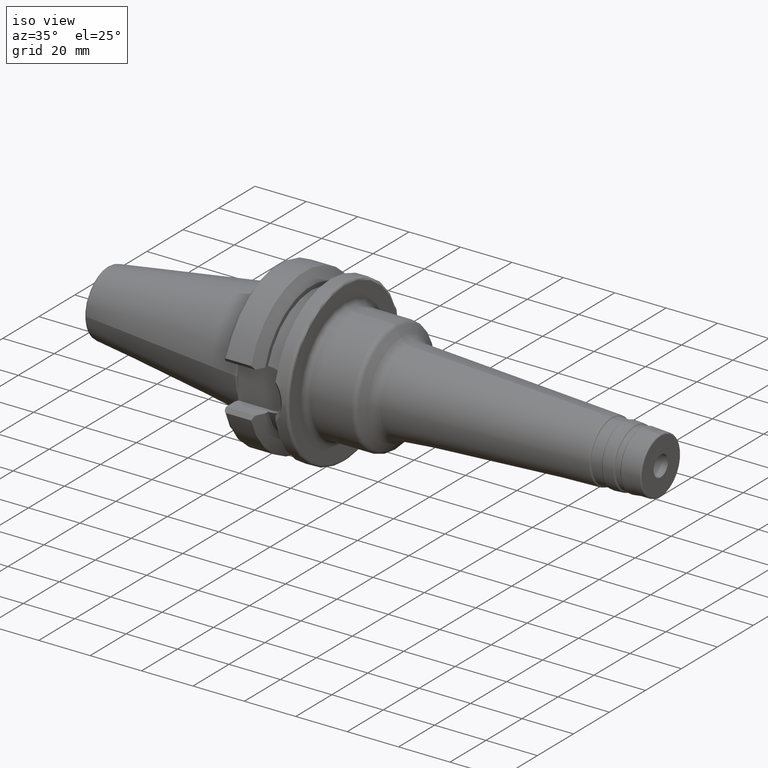
[diagram: clean part render]
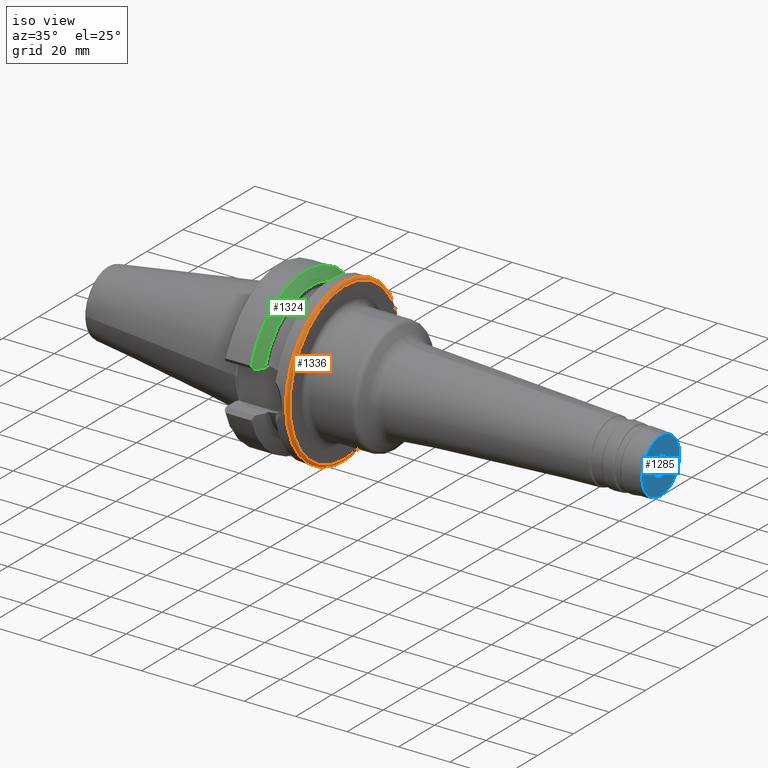
[diagram: same view with three faces highlighted in distinct colors, each labeled with its STEP entity id]
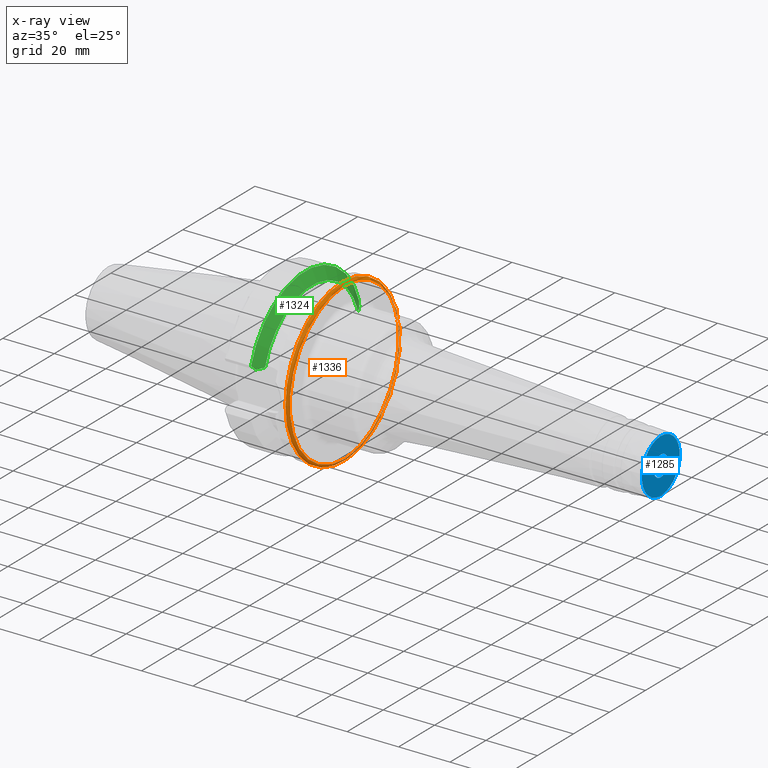
[diagram: x-ray of the same camera — body ghosted, the three highlighted faces saturated]
A machine part, iso view with three faces highlighted in distinct colors.
The next image is the same camera in x-ray (body ghosted, the three faces saturated) — at least one of them is partly hidden behind the body in this view.
Their STEP definitions:

[orange] entity #1336 — the highlighted toroidal blend (fillet) surface has major radius 30.5 mm and minor (blend) radius 1 mm.
#332=FACE_OUTER_BOUND('',#419,.T.);
#419=EDGE_LOOP('',(#1194,#1195,#1196,#1197,#1198));
#471=CIRCLE('',#1434,30.5);
#480=CIRCLE('',#1451,31.5);
#483=CIRCLE('',#1454,31.5);
#511=CIRCLE('',#1519,1.00000000000001);
#554=VERTEX_POINT('',#2073);
#568=VERTEX_POINT('',#2193);
#569=VERTEX_POINT('',#2194);
#699=EDGE_CURVE('',#554,#554,#471,.T.);
#718=EDGE_CURVE('',#568,#569,#480,.T.);
#723=EDGE_CURVE('',#569,#568,#483,.T.);
#826=EDGE_CURVE('',#554,#569,#511,.T.);
#1194=ORIENTED_EDGE('',*,*,#699,.F.);
#1195=ORIENTED_EDGE('',*,*,#826,.T.);
#1196=ORIENTED_EDGE('',*,*,#723,.T.);
#1197=ORIENTED_EDGE('',*,*,#718,.T.);
#1198=ORIENTED_EDGE('',*,*,#826,.F.);
#1261=TOROIDAL_SURFACE('',#1518,30.5,1.00000000000001);
#1336=ADVANCED_FACE('',(#332),#1261,.T.);
#1434=AXIS2_PLACEMENT_3D('',#2074,#1686,#1687);
#1451=AXIS2_PLACEMENT_3D('',#2195,#1725,#1726);
#1454=AXIS2_PLACEMENT_3D('',#2210,#1732,#1733);
#1518=AXIS2_PLACEMENT_3D('',#2582,#1908,#1909);
#1519=AXIS2_PLACEMENT_3D('',#2583,#1910,#1911);
#1686=DIRECTION('center_axis',(1.,0.,0.));
#1687=DIRECTION('ref_axis',(0.,0.,-1.));
#1725=DIRECTION('center_axis',(1.,0.,0.));
#1726=DIRECTION('ref_axis',(0.,0.,-1.));
#1732=DIRECTION('center_axis',(1.,0.,0.));
#1733=DIRECTION('ref_axis',(0.,0.,-1.));
#1908=DIRECTION('center_axis',(1.,0.,0.));
#1909=DIRECTION('ref_axis',(0.,0.,-1.));
#1910=DIRECTION('center_axis',(0.,-1.,-1.22464679914735E-16));
#1911=DIRECTION('ref_axis',(0.,-1.22464679914735E-16,1.));
#2073=CARTESIAN_POINT('',(27.,-3.73517273739943E-15,30.5));
#2074=CARTESIAN_POINT('Origin',(27.,0.,0.));
#2193=CARTESIAN_POINT('',(26.,-31.5,-3.85763741731417E-15));
#2194=CARTESIAN_POINT('',(26.,-3.85763741731416E-15,31.5));
#2195=CARTESIAN_POINT('Origin',(26.,0.,0.));
#2210=CARTESIAN_POINT('Origin',(26.,0.,0.));
#2582=CARTESIAN_POINT('Origin',(26.,0.,0.));
#2583=CARTESIAN_POINT('Origin',(26.,-3.73517273739943E-15,30.5));

[blue] entity #1285 — the highlighted planar face has unit normal (1, 0, 0).
#67=FACE_BOUND('',#365,.T.);
#73=PLANE('',#1422);
#281=FACE_OUTER_BOUND('',#364,.T.);
#364=EDGE_LOOP('',(#929));
#365=EDGE_LOOP('',(#930));
#462=CIRCLE('',#1420,10.5255177166426);
#464=CIRCLE('',#1423,3.96875);
#548=VERTEX_POINT('',#2052);
#549=VERTEX_POINT('',#2056);
#689=EDGE_CURVE('',#548,#548,#462,.T.);
#691=EDGE_CURVE('',#549,#549,#464,.T.);
#929=ORIENTED_EDGE('',*,*,#689,.F.);
#930=ORIENTED_EDGE('',*,*,#691,.F.);
#1285=ADVANCED_FACE('',(#281,#67),#73,.T.);
#1420=AXIS2_PLACEMENT_3D('',#2053,#1657,#1658);
#1422=AXIS2_PLACEMENT_3D('',#2055,#1661,#1662);
#1423=AXIS2_PLACEMENT_3D('',#2057,#1663,#1664);
#1657=DIRECTION('center_axis',(-1.,0.,0.));
#1658=DIRECTION('ref_axis',(0.,1.22464679914735E-16,1.));
#1661=DIRECTION('center_axis',(1.,0.,0.));
#1662=DIRECTION('ref_axis',(0.,0.,-1.));
#1663=DIRECTION('center_axis',(1.,0.,0.));
#1664=DIRECTION('ref_axis',(0.,0.,-1.));
#2052=CARTESIAN_POINT('',(150.,-1.28900415810551E-15,10.5255177166426));
#2053=CARTESIAN_POINT('Origin',(150.,0.,0.));
#2055=CARTESIAN_POINT('Origin',(150.,0.,-3.96875));
#2056=CARTESIAN_POINT('',(150.,-4.86031698411606E-16,3.96875));
#2057=CARTESIAN_POINT('Origin',(150.,0.,0.));

[green] entity #1324 — the highlighted conical surface has half-angle 60.125 deg.
#16=(
BOUNDED_CURVE()
B_SPLINE_CURVE(2,(#2293,#2294,#2295),.UNSPECIFIED.,.F.,.F.)
B_SPLINE_CURVE_WITH_KNOTS((3,3),(0.419137956116443,0.619098206037661),
 .UNSPECIFIED.)
CURVE()
GEOMETRIC_REPRESENTATION_ITEM()
RATIONAL_B_SPLINE_CURVE((1.00204724221676,1.00151196517188,1.))
REPRESENTATION_ITEM('')
);
#17=(
BOUNDED_CURVE()
B_SPLINE_CURVE(2,(#2400,#2401,#2402),.UNSPECIFIED.,.F.,.F.)
B_SPLINE_CURVE_WITH_KNOTS((3,3),(0.,0.199960249921218),.UNSPECIFIED.)
CURVE()
GEOMETRIC_REPRESENTATION_ITEM()
RATIONAL_B_SPLINE_CURVE((1.,1.00151196517188,1.00204724221676))
REPRESENTATION_ITEM('')
);
#23=(
BOUNDED_CURVE()
B_SPLINE_CURVE(2,(#2465,#2466,#2467),.UNSPECIFIED.,.F.,.F.)
B_SPLINE_CURVE_WITH_KNOTS((3,3),(0.173905198239554,0.523582790832813),
 .UNSPECIFIED.)
CURVE()
GEOMETRIC_REPRESENTATION_ITEM()
RATIONAL_B_SPLINE_CURVE((1.00136360040299,1.00205272099915,1.))
REPRESENTATION_ITEM('')
);
#26=(
BOUNDED_CURVE()
B_SPLINE_CURVE(2,(#2530,#2531,#2532),.UNSPECIFIED.,.F.,.F.)
B_SPLINE_CURVE_WITH_KNOTS((3,3),(0.,0.349677592593259),.UNSPECIFIED.)
CURVE()
GEOMETRIC_REPRESENTATION_ITEM()
RATIONAL_B_SPLINE_CURVE((1.,1.00205272099915,1.00136360040299))
REPRESENTATION_ITEM('')
);
#256=CONICAL_SURFACE('',#1498,29.2970358274569,1.04937921276159);
#320=FACE_OUTER_BOUND('',#407,.T.);
#407=EDGE_LOOP('',(#1124,#1125,#1126,#1127,#1128,#1129));
#492=CIRCLE('',#1472,31.5000000000001);
#503=CIRCLE('',#1499,27.0940716549138);
#586=VERTEX_POINT('',#2291);
#587=VERTEX_POINT('',#2292);
#596=VERTEX_POINT('',#2336);
#598=VERTEX_POINT('',#2399);
#616=VERTEX_POINT('',#2463);
#630=VERTEX_POINT('',#2528);
#742=EDGE_CURVE('',#586,#587,#16,.T.);
#754=EDGE_CURVE('',#596,#587,#492,.T.);
#758=EDGE_CURVE('',#596,#598,#17,.T.);
#785=EDGE_CURVE('',#586,#616,#23,.T.);
#807=EDGE_CURVE('',#630,#616,#503,.T.);
#808=EDGE_CURVE('',#630,#598,#26,.T.);
#1124=ORIENTED_EDGE('',*,*,#742,.F.);
#1125=ORIENTED_EDGE('',*,*,#785,.T.);
#1126=ORIENTED_EDGE('',*,*,#807,.F.);
#1127=ORIENTED_EDGE('',*,*,#808,.T.);
#1128=ORIENTED_EDGE('',*,*,#758,.F.);
#1129=ORIENTED_EDGE('',*,*,#754,.T.);
#1324=ADVANCED_FACE('',(#320),#256,.T.);
#1472=AXIS2_PLACEMENT_3D('',#2337,#1781,#1782);
#1498=AXIS2_PLACEMENT_3D('',#2527,#1861,#1862);
#1499=AXIS2_PLACEMENT_3D('',#2529,#1863,#1864);
#1781=DIRECTION('center_axis',(1.,0.,0.));
#1782=DIRECTION('ref_axis',(0.,0.,-1.));
#1861=DIRECTION('center_axis',(-1.,0.,0.));
#1862=DIRECTION('ref_axis',(0.,1.,0.));
#1863=DIRECTION('center_axis',(1.,0.,0.));
#1864=DIRECTION('ref_axis',(0.,0.,-1.));
#2291=CARTESIAN_POINT('',(12.4560255586892,-28.8540227227866,8.05));
#2292=CARTESIAN_POINT('',(11.5690363073381,-30.0059801089944,9.58598757033588));
#2293=CARTESIAN_POINT('Ctrl Pts',(12.4560255586892,-28.8540227227866,8.05));
#2294=CARTESIAN_POINT('Ctrl Pts',(12.0297591827714,-29.4155299486053,8.79869793782091));
#2295=CARTESIAN_POINT('Ctrl Pts',(11.5690363073381,-30.0059801089944,9.58598757033588));
#2336=CARTESIAN_POINT('',(11.5690363073381,30.0059801089944,9.58598757033588));
#2337=CARTESIAN_POINT('Origin',(11.5690363073381,0.,0.));
#2399=CARTESIAN_POINT('',(12.4560255586892,28.8540227227866,8.05));
#2400=CARTESIAN_POINT('Ctrl Pts',(11.5690363073381,30.0059801089944,9.58598757033588));
#2401=CARTESIAN_POINT('Ctrl Pts',(12.0297591827714,29.4155299486053,8.79869793782091));
#2402=CARTESIAN_POINT('Ctrl Pts',(12.4560255586892,28.8540227227866,8.05));
#2463=CARTESIAN_POINT('',(14.1,-25.8705666509569,8.05));
#2465=CARTESIAN_POINT('Ctrl Pts',(12.4560255586892,-28.8540227227866,8.05));
#2466=CARTESIAN_POINT('Ctrl Pts',(13.3228255918789,-27.2874638426469,8.05));
#2467=CARTESIAN_POINT('Ctrl Pts',(14.1,-25.8705666509569,8.05));
#2527=CARTESIAN_POINT('Origin',(12.8345181536691,0.,0.));
#2528=CARTESIAN_POINT('',(14.1,25.8705666509569,8.05));
#2529=CARTESIAN_POINT('Origin',(14.1,0.,0.));
#2530=CARTESIAN_POINT('Ctrl Pts',(14.1,25.8705666509569,8.05));
#2531=CARTESIAN_POINT('Ctrl Pts',(13.3228255918789,27.2874638426469,8.05));
#2532=CARTESIAN_POINT('Ctrl Pts',(12.4560255586892,28.8540227227866,8.05));